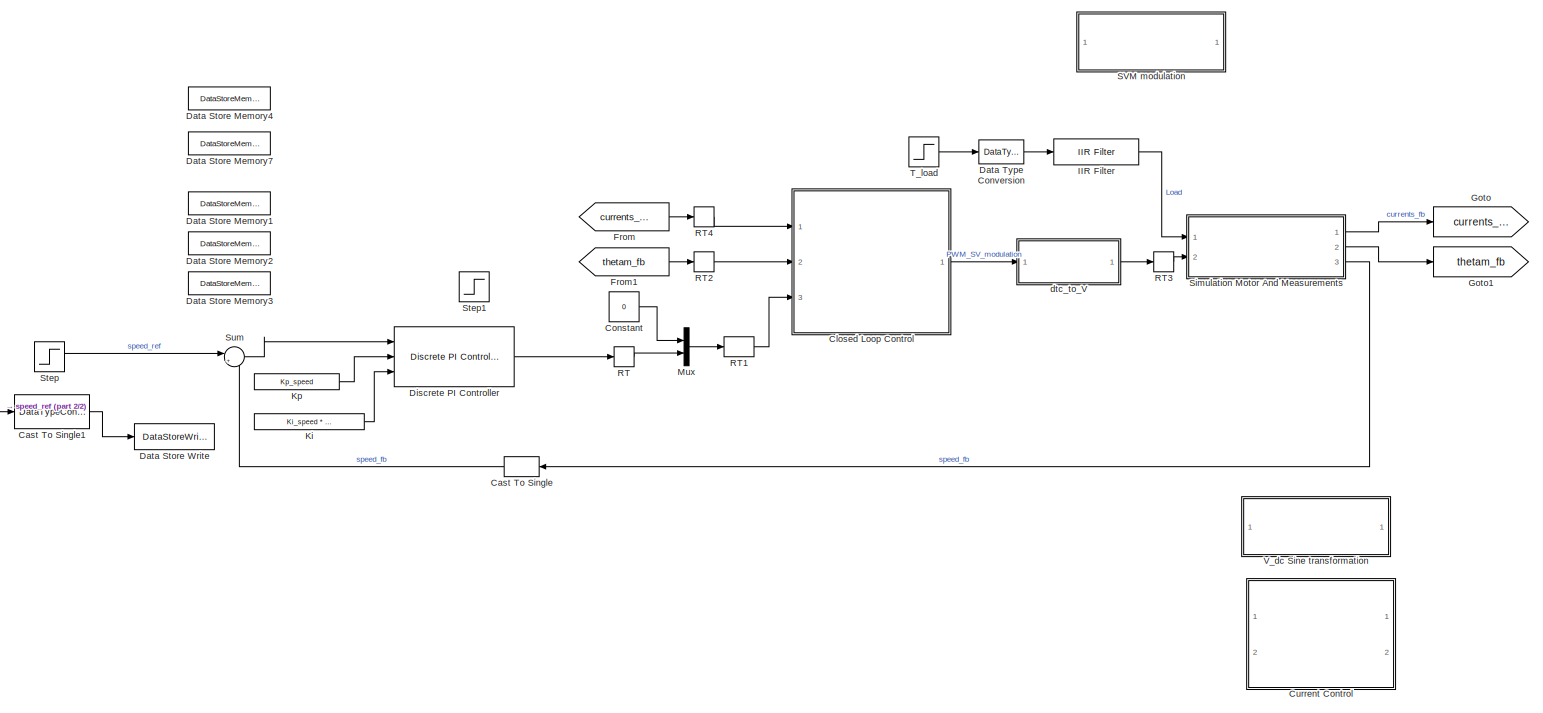
[diagram: root canvas - part 1/2, most of the canvas]
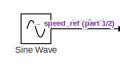
[diagram: root canvas - part 2/2, middle left region]
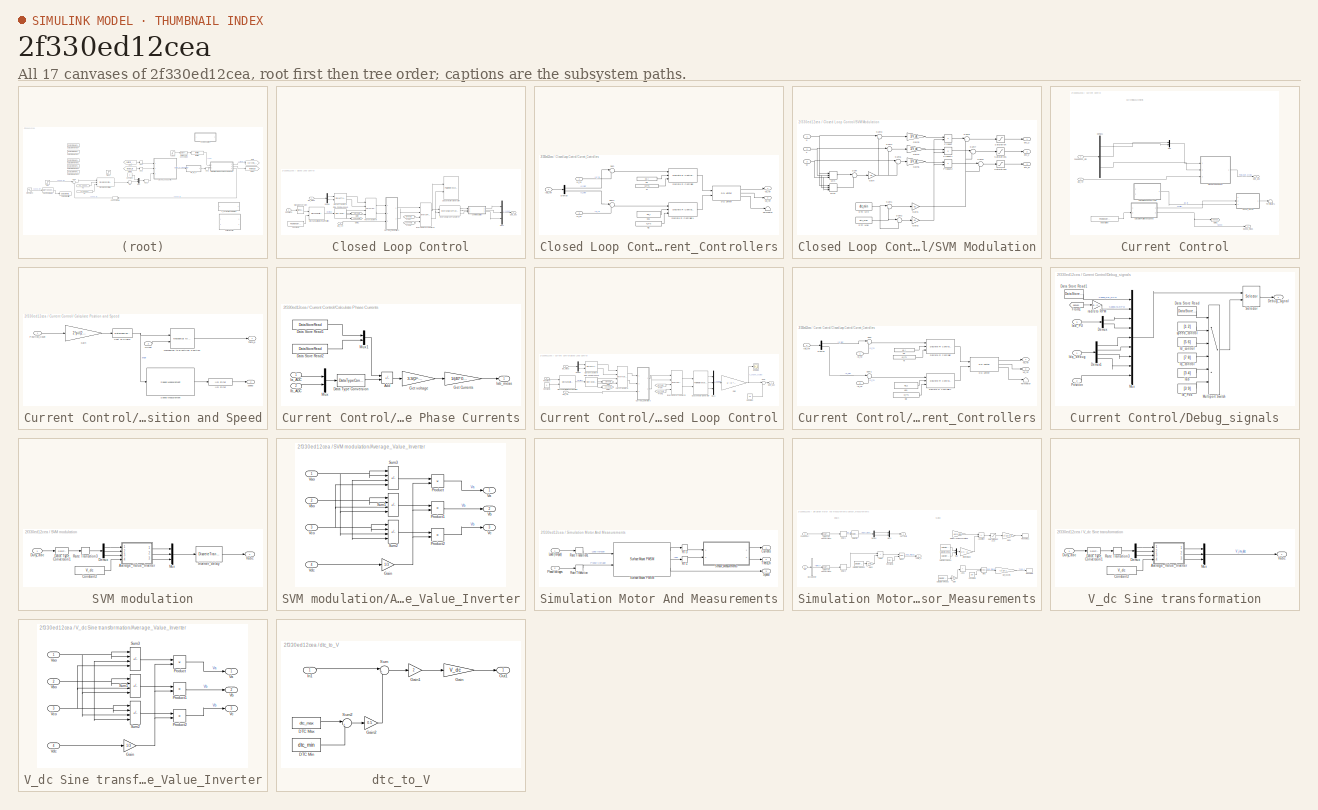
[diagram: thumbnail index - all 17 canvases of the model, root first then tree order]
MODEL slx_2f330ed12cea
KIND model
CONFIG AbsTol = auto
CONFIG EnableMultiTasking = off
CONFIG FixedStep = auto
CONFIG InitFcn = run bldc_control_params
CONFIG MaxStep = auto
CONFIG MinStep = auto
CONFIG RelTol = 1e-3
CONFIG SampleTimeConstraint = Unconstrained
CONFIG SolverName = VariableStepAuto
CONFIG StartTime = 0.0
CONFIG StopTime = 30
BLOCK [DataTypeConversion] Cast To Single
  NameLocation = top
  OutDataTypeStr = single
  RndMeth = Floor
  SaturateOnIntegerOverflow = off
BLOCK [DataTypeConversion] Cast To Single1
  OutDataTypeStr = single
  RndMeth = Floor
  SaturateOnIntegerOverflow = off
BLOCK [SubSystem] Closed Loop Control
  Ports = [3, 1]
  RequestExecContextInheritance = off
BLOCK [Reference] Closed Loop Control/Clarke Transform  REF=mcbcontrolslib/Clarke Transform
  Ports = [2, 2]
  SourceBlock = mcbcontrolslib/Clarke Transform
  SourceProductBaseCode = MT
  SourceType = Clarke Transform
BLOCK [Constant] Closed Loop Control/Constant1
  Value = PositionOffset
BLOCK [SubSystem] Closed Loop Control/Current_Controllers
  Ports = [3, 2]
  RequestExecContextInheritance = off
BLOCK [Reference] Closed Loop Control/Current_Controllers/DQ Limiter  REF=mcbcontrolslib/DQ Limiter
  Ports = [2, 3]
  SourceBlock = mcbcontrolslib/DQ Limiter
  SourceProductBaseCode = MT
  SourceType = DQ Limiter
BLOCK [Demux] Closed Loop Control/Current_Controllers/Demux
  Outputs = 2
  Ports = [1, 2]
BLOCK [Reference] Closed Loop Control/Current_Controllers/Discrete PI Controller  REF=mcbcontrolslib/Discrete PI Controller
  Ports = [3, 1]
  SourceBlock = mcbcontrolslib/Discrete PI Controller
  SourceProductBaseCode = MT
  SourceType = Discrete PI Controller
BLOCK [Reference] Closed Loop Control/Current_Controllers/Discrete PI Controller1  REF=mcbcontrolslib/Discrete PI Controller
  Ports = [3, 1]
  SourceBlock = mcbcontrolslib/Discrete PI Controller
  SourceProductBaseCode = MT
  SourceType = Discrete PI Controller
BLOCK [Inport] Closed Loop Control/Current_Controllers/Id_fb
BLOCK [Inport] Closed Loop Control/Current_Controllers/Idq_ref
  Port = 3
BLOCK [Inport] Closed Loop Control/Current_Controllers/Iq_fb
  Port = 2
BLOCK [Constant] Closed Loop Control/Current_Controllers/Ki
  OutDataTypeStr = dataType
  SampleTime = -1
  Value = Ki_i * Ts
BLOCK [Constant] Closed Loop Control/Current_Controllers/Ki2
  OutDataTypeStr = dataType
  SampleTime = -1
  Value = Ki_i * Ts
BLOCK [Constant] Closed Loop Control/Current_Controllers/Kp
  NameLocation = top
  OutDataTypeStr = dataType
  SampleTime = -1
  Value = Kp_i
BLOCK [Constant] Closed Loop Control/Current_Controllers/Kp1
  NameLocation = top
  OutDataTypeStr = dataType
  SampleTime = -1
  Value = Kp_i
BLOCK [Sum] Closed Loop Control/Current_Controllers/Sum
  AccumDataTypeStr = Inherit: Same as first input
  Inputs = |+-
  OutDataTypeStr = Inherit: Same as first input
  Ports = [2, 1]
BLOCK [Sum] Closed Loop Control/Current_Controllers/Sum1
  AccumDataTypeStr = Inherit: Same as first input
  Inputs = |+-
  OutDataTypeStr = Inherit: Same as first input
  Ports = [2, 1]
BLOCK [Terminator] Closed Loop Control/Current_Controllers/Terminator
BLOCK [Outport] Closed Loop Control/Current_Controllers/Vd_ref
  VectorParamsAs1DForOutWhenUnconnected = off
BLOCK [Outport] Closed Loop Control/Current_Controllers/Vq_ref
  Port = 2
  VectorParamsAs1DForOutWhenUnconnected = off
BLOCK [Demux] Closed Loop Control/Demux
  Outputs = 2
  Ports = [1, 2]
BLOCK [Outport] Closed Loop Control/Duty_abc
  VectorParamsAs1DForOutWhenUnconnected = off
BLOCK [From] Closed Loop Control/From
  GotoTag = sinTheta
BLOCK [From] Closed Loop Control/From1
  GotoTag = cosTheta
BLOCK [Goto] Closed Loop Control/Goto
  GotoTag = sinTheta
BLOCK [Goto] Closed Loop Control/Goto1
  GotoTag = cosTheta
BLOCK [Inport] Closed Loop Control/Iab_meas
BLOCK [Inport] Closed Loop Control/Idq_ref
  Port = 3
BLOCK [Reference] Closed Loop Control/Inverse Clarke Transform  REF=mcbcontrolslib/Inverse Clarke Transform
  Ports = [2, 3]
  SourceBlock = mcbcontrolslib/Inverse Clarke Transform
  SourceProductBaseCode = MT
  SourceType = Inverse Clarke Transform
BLOCK [Reference] Closed Loop Control/Inverse Park Transform  REF=mcbcontrolslib/Inverse Park Transform
  Ports = [4, 2]
  SourceBlock = mcbcontrolslib/Inverse Park Transform
  SourceProductBaseCode = MT
  SourceType = Inverse Park Transform
BLOCK [Reference] Closed Loop Control/Mechanical to Electrical Position  REF=mcbpositiondecoderlib/Mechanical to Electrical Position
  Ports = [2, 1]
  SourceBlock = mcbpositiondecoderlib/Mechanical to Electrical Position
  SourceProductBaseCode = MT
  SourceType = Mechanical to Electrical Position
BLOCK [Mux] Closed Loop Control/Mux1
  DisplayOption = bar
  Inputs = 3
  Ports = [3, 1]
BLOCK [Reference] Closed Loop Control/Park Transform  REF=mcbcontrolslib/Park Transform
  Ports = [4, 2]
  SourceBlock = mcbcontrolslib/Park Transform
  SourceProductBaseCode = MT
  SourceType = Park Transform
BLOCK [Inport] Closed Loop Control/Pos Mech
  Port = 2
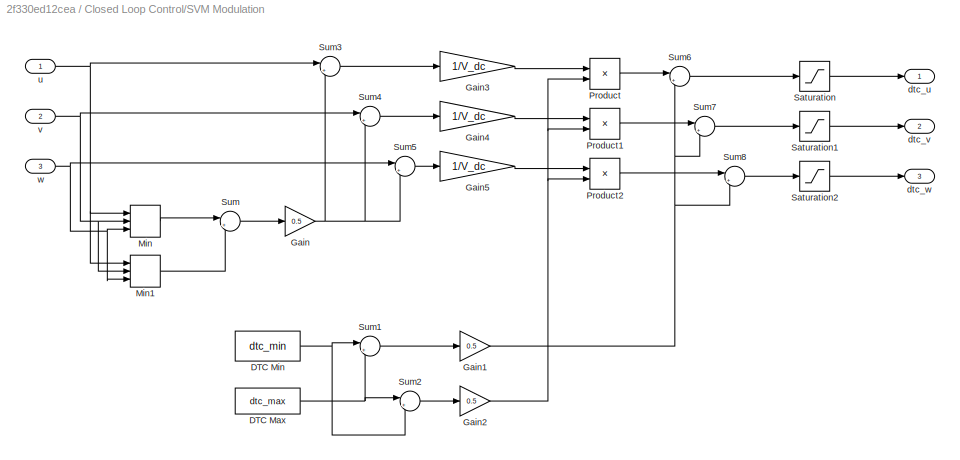
BLOCK [SubSystem] Closed Loop Control/SVM Modulation
  Ports = [3, 3]
  RequestExecContextInheritance = off
BLOCK [Constant] Closed Loop Control/SVM Modulation/DTC Max
  Value = dtc_max
BLOCK [Constant] Closed Loop Control/SVM Modulation/DTC Min
  Value = dtc_min
BLOCK [Gain] Closed Loop Control/SVM Modulation/Gain
  Gain = 0.5
BLOCK [Gain] Closed Loop Control/SVM Modulation/Gain1
  Gain = 0.5
BLOCK [Gain] Closed Loop Control/SVM Modulation/Gain2
  Gain = 0.5
BLOCK [Gain] Closed Loop Control/SVM Modulation/Gain3
  Gain = 1/V_dc
BLOCK [Gain] Closed Loop Control/SVM Modulation/Gain4
  Gain = 1/V_dc
BLOCK [Gain] Closed Loop Control/SVM Modulation/Gain5
  Gain = 1/V_dc
BLOCK [MinMax] Closed Loop Control/SVM Modulation/Min
  Inputs = 3
  Ports = [3, 1]
BLOCK [MinMax] Closed Loop Control/SVM Modulation/Min1
  Function = max
  Inputs = 3
  Ports = [3, 1]
BLOCK [Product] Closed Loop Control/SVM Modulation/Product
  Ports = [2, 1]
BLOCK [Product] Closed Loop Control/SVM Modulation/Product1
  Ports = [2, 1]
BLOCK [Product] Closed Loop Control/SVM Modulation/Product2
  Ports = [2, 1]
BLOCK [Saturate] Closed Loop Control/SVM Modulation/Saturation
  LowerLimit = 0
  UpperLimit = dtc_max
BLOCK [Saturate] Closed Loop Control/SVM Modulation/Saturation1
  LowerLimit = 0
  UpperLimit = dtc_max
BLOCK [Saturate] Closed Loop Control/SVM Modulation/Saturation2
  LowerLimit = 0
  UpperLimit = dtc_max
BLOCK [Sum] Closed Loop Control/SVM Modulation/Sum
  Inputs = |++
  Ports = [2, 1]
BLOCK [Sum] Closed Loop Control/SVM Modulation/Sum1
  Inputs = |++
  Ports = [2, 1]
BLOCK [Sum] Closed Loop Control/SVM Modulation/Sum2
  Inputs = |+-
  Ports = [2, 1]
BLOCK [Sum] Closed Loop Control/SVM Modulation/Sum3
  Inputs = |+-
  Ports = [2, 1]
BLOCK [Sum] Closed Loop Control/SVM Modulation/Sum4
  Inputs = |+-
  Ports = [2, 1]
BLOCK [Sum] Closed Loop Control/SVM Modulation/Sum5
  Inputs = |+-
  Ports = [2, 1]
BLOCK [Sum] Closed Loop Control/SVM Modulation/Sum6
  Inputs = |++
  Ports = [2, 1]
BLOCK [Sum] Closed Loop Control/SVM Modulation/Sum7
  Inputs = |++
  Ports = [2, 1]
BLOCK [Sum] Closed Loop Control/SVM Modulation/Sum8
  Inputs = |++
  Ports = [2, 1]
BLOCK [Outport] Closed Loop Control/SVM Modulation/dtc_u
BLOCK [Outport] Closed Loop Control/SVM Modulation/dtc_v
  Port = 2
BLOCK [Outport] Closed Loop Control/SVM Modulation/dtc_w
  Port = 3
BLOCK [Inport] Closed Loop Control/SVM Modulation/u
BLOCK [Inport] Closed Loop Control/SVM Modulation/v
  Port = 2
BLOCK [Inport] Closed Loop Control/SVM Modulation/w
  Port = 3
BLOCK [SignalConversion] Closed Loop Control/Signal Conversion
  OverrideOpt = off
BLOCK [Reference] Closed Loop Control/Sine-Cosine Lookup  REF=mcbcontrolslib/Sine-Cosine Lookup
  Ports = [1, 2]
  SourceBlock = mcbcontrolslib/Sine-Cosine Lookup
  SourceProductBaseCode = MT
  SourceType = Sine-Cosine Lookup
BLOCK [Reference] Closed Loop Control/Space Vector Generator  REF=mcbcontrolslib/PWM Reference Generator
  Commented = on
  Ports = [2, 3]
  SourceBlock = mcbcontrolslib/PWM Reference Generator
  SourceProductBaseCode = MT
  SourceType = PWM Modulation
BLOCK [Constant] Constant
  OutDataTypeStr = single
  Value = 0
BLOCK [SubSystem] Current Control
  Commented = on
  Ports = [2, 2]
  RTWMemSecFuncExecute = code_ramfuncs
  RTWSystemCode = Nonreusable function
  RequestExecContextInheritance = off
BLOCK [SubSystem] Current Control/ Calculate Position and Speed
  Commented = on
  Ports = [2, 2]
  RequestExecContextInheritance = off
BLOCK [DataTypeConversion] Current Control/ Calculate Position and Speed/Cast To Single
  OutDataTypeStr = single
  RndMeth = Floor
  SaturateOnIntegerOverflow = off
BLOCK [Gain] Current Control/ Calculate Position and Speed/Gain
  Gain = 2*pi/(2^enc_res)
BLOCK [Reference] Current Control/ Calculate Position and Speed/IIR Filter  REF=mcbcontrolslib/IIR Filter
  Ports = [1, 1]
  SourceBlock = mcbcontrolslib/IIR Filter
  SourceProductBaseCode = MT
  SourceType = IIR Filter
BLOCK [Reference] Current Control/ Calculate Position and Speed/Mechanical to Electrical Position  REF=mcbpositiondecoderlib/Mechanical to Electrical Position
  Ports = [2, 1]
  SourceBlock = mcbpositiondecoderlib/Mechanical to Electrical Position
  SourceProductBaseCode = MT
  SourceType = Mechanical to Electrical Position
BLOCK [Inport] Current Control/ Calculate Position and Speed/Offset
  Port = 2
BLOCK [Inport] Current Control/ Calculate Position and Speed/Position_Count
BLOCK [Reference] Current Control/ Calculate Position and Speed/Speed Measurement  REF=mcbpositiondecoderlib/Speed Measurement
  Ports = [1, 1]
  SourceBlock = mcbpositiondecoderlib/Speed Measurement
  SourceProductBaseCode = MT
  SourceType = Speed Measurement
BLOCK [Outport] Current Control/ Calculate Position and Speed/Theta_e
  VectorParamsAs1DForOutWhenUnconnected = off
BLOCK [Outport] Current Control/ Calculate Position and Speed/speed
  Port = 2
  VectorParamsAs1DForOutWhenUnconnected = off
BLOCK [SubSystem] Current Control/Calculate Phase Currents
  Commented = on
  Ports = [2, 1]
  RequestExecContextInheritance = off
BLOCK [Sum] Current Control/Calculate Phase Currents/Add
  IconShape = rectangular
  Inputs = +-
  Ports = [2, 1]
BLOCK [DataStoreRead] Current Control/Calculate Phase Currents/Data Store Read1
  DataStoreName = IaOffset
  IndexOptions = Index vector (dialog)
  Indices = 1
  OutputSizes = 1
  Ports = [0, 1]
BLOCK [DataStoreRead] Current Control/Calculate Phase Currents/Data Store Read2
  DataStoreName = IbOffset
  IndexOptions = Index vector (dialog)
  Indices = 1
  OutputSizes = 1
  Ports = [0, 1]
BLOCK [DataTypeConversion] Current Control/Calculate Phase Currents/Data Type Conversion
  ConvertRealWorld = Stored Integer (SI)
  OutDataTypeStr = int32
  RndMeth = Simplest
  SaturateOnIntegerOverflow = off
BLOCK [Gain] Current Control/Calculate Phase Currents/Get Currents
  Gain = 1/(40*0.001)
  OutDataTypeStr = dataType
  RndMeth = Simplest
BLOCK [Gain] Current Control/Calculate Phase Currents/Get voltage
  Gain = 3.3/(2^12)
BLOCK [Inport] Current Control/Calculate Phase Currents/Ia_ADC
BLOCK [Outport] Current Control/Calculate Phase Currents/Iab_meas
  VectorParamsAs1DForOutWhenUnconnected = off
BLOCK [Inport] Current Control/Calculate Phase Currents/Ib_ADC
  Port = 2
BLOCK [Mux] Current Control/Calculate Phase Currents/Mux
  DisplayOption = bar
  Inputs = 2
  Ports = [2, 1]
BLOCK [Mux] Current Control/Calculate Phase Currents/Mux1
  DisplayOption = bar
  Inputs = 2
  Ports = [2, 1]
BLOCK [SubSystem] Current Control/Closed Loop Control
  Ports = [3, 1]
  RequestExecContextInheritance = off
BLOCK [Reference] Current Control/Closed Loop Control/Clarke Transform  REF=mcbcontrolslib/Clarke Transform
  Ports = [2, 2]
  SourceBlock = mcbcontrolslib/Clarke Transform
  SourceProductBaseCode = MT
  SourceType = Clarke Transform
BLOCK [Constant] Current Control/Closed Loop Control/Constant
  OutDataTypeStr = dataType
  SampleTime = -1
  Value = 0.5
BLOCK [Constant] Current Control/Closed Loop Control/Constant1
  Value = 0
BLOCK [SubSystem] Current Control/Closed Loop Control/Current_Controllers
  Ports = [3, 2]
  RequestExecContextInheritance = off
BLOCK [Reference] Current Control/Closed Loop Control/Current_Controllers/DQ Limiter  REF=mcbcontrolslib/DQ Limiter
  Ports = [2, 3]
  SourceBlock = mcbcontrolslib/DQ Limiter
  SourceProductBaseCode = MT
  SourceType = DQ Limiter
BLOCK [Demux] Current Control/Closed Loop Control/Current_Controllers/Demux
  Outputs = 2
  Ports = [1, 2]
BLOCK [Reference] Current Control/Closed Loop Control/Current_Controllers/Discrete PI Controller  REF=mcbcontrolslib/Discrete PI Controller
  Ports = [3, 1]
  SourceBlock = mcbcontrolslib/Discrete PI Controller
  SourceProductBaseCode = MT
  SourceType = Discrete PI Controller
BLOCK [Reference] Current Control/Closed Loop Control/Current_Controllers/Discrete PI Controller1  REF=mcbcontrolslib/Discrete PI Controller
  Ports = [3, 1]
  SourceBlock = mcbcontrolslib/Discrete PI Controller
  SourceProductBaseCode = MT
  SourceType = Discrete PI Controller
BLOCK [Inport] Current Control/Closed Loop Control/Current_Controllers/Id_fb
BLOCK [Inport] Current Control/Closed Loop Control/Current_Controllers/Idq_ref
  Port = 3
BLOCK [Inport] Current Control/Closed Loop Control/Current_Controllers/Iq_fb
  Port = 2
BLOCK [Constant] Current Control/Closed Loop Control/Current_Controllers/Ki
  OutDataTypeStr = dataType
  SampleTime = -1
  Value = Ki_i * Ts
BLOCK [Constant] Current Control/Closed Loop Control/Current_Controllers/Ki2
  OutDataTypeStr = dataType
  SampleTime = -1
  Value = Ki_i * Ts
BLOCK [Constant] Current Control/Closed Loop Control/Current_Controllers/Kp
  NameLocation = top
  OutDataTypeStr = dataType
  SampleTime = -1
  Value = Kp_i
BLOCK [Constant] Current Control/Closed Loop Control/Current_Controllers/Kp1
  NameLocation = top
  OutDataTypeStr = dataType
  SampleTime = -1
  Value = Kp_i
BLOCK [Sum] Current Control/Closed Loop Control/Current_Controllers/Sum
  AccumDataTypeStr = Inherit: Same as first input
  Inputs = |+-
  OutDataTypeStr = Inherit: Same as first input
  Ports = [2, 1]
BLOCK [Sum] Current Control/Closed Loop Control/Current_Controllers/Sum1
  AccumDataTypeStr = Inherit: Same as first input
  Inputs = |+-
  OutDataTypeStr = Inherit: Same as first input
  Ports = [2, 1]
BLOCK [Terminator] Current Control/Closed Loop Control/Current_Controllers/Terminator
BLOCK [Outport] Current Control/Closed Loop Control/Current_Controllers/Vd_ref
  VectorParamsAs1DForOutWhenUnconnected = off
BLOCK [Outport] Current Control/Closed Loop Control/Current_Controllers/Vq_ref
  Port = 2
  VectorParamsAs1DForOutWhenUnconnected = off
BLOCK [Demux] Current Control/Closed Loop Control/Demux
  Outputs = 2
  Ports = [1, 2]
BLOCK [Outport] Current Control/Closed Loop Control/Duty_abc
  VectorParamsAs1DForOutWhenUnconnected = off
BLOCK [From] Current Control/Closed Loop Control/From
  GotoTag = sinTheta
BLOCK [From] Current Control/Closed Loop Control/From1
  GotoTag = cosTheta
BLOCK [Gain] Current Control/Closed Loop Control/Gain
  Gain = 1/ (2 * V_dc / sqrt(3))
  OutDataTypeStr = Inherit: Same as input
  RndMeth = Simplest
BLOCK [Goto] Current Control/Closed Loop Control/Goto
  GotoTag = sinTheta
BLOCK [Goto] Current Control/Closed Loop Control/Goto1
  GotoTag = cosTheta
BLOCK [Inport] Current Control/Closed Loop Control/Iab_meas
BLOCK [Inport] Current Control/Closed Loop Control/Idq_ref
  Port = 3
BLOCK [Reference] Current Control/Closed Loop Control/Inverse Park Transform  REF=mcbcontrolslib/Inverse Park Transform
  Ports = [4, 2]
  SourceBlock = mcbcontrolslib/Inverse Park Transform
  SourceProductBaseCode = MT
  SourceType = Inverse Park Transform
BLOCK [Reference] Current Control/Closed Loop Control/Mechanical to Electrical Position  REF=mcbpositiondecoderlib/Mechanical to Electrical Position
  Ports = [2, 1]
  SourceBlock = mcbpositiondecoderlib/Mechanical to Electrical Position
  SourceProductBaseCode = MT
  SourceType = Mechanical to Electrical Position
BLOCK [Mux] Current Control/Closed Loop Control/Mux1
  DisplayOption = bar
  Inputs = 3
  Ports = [3, 1]
BLOCK [Reference] Current Control/Closed Loop Control/Park Transform  REF=mcbcontrolslib/Park Transform
  Ports = [4, 2]
  SourceBlock = mcbcontrolslib/Park Transform
  SourceProductBaseCode = MT
  SourceType = Park Transform
BLOCK [Inport] Current Control/Closed Loop Control/Pos Mech
  Port = 2
BLOCK [Scope] Current Control/Closed Loop Control/Scope1
  Floating = off
  NumInputPorts = 1
  Ports = [1]
  ScopeSpecificationString = Simulink.scopes.TimeScopeBlockCfg('CurrentConfiguration', extmgr.ConfigurationSet(extmgr.Configuration('Core','General UI',true),extmgr.Configuration('Core','Source UI',true),extmgr.Configuration('Sources','WiredSimulink',true,'DataLoggingVariableName','ScopeData2'),extmgr.Configuration('Visuals','Time Domain',true,'SerializedDisplays',{struct('MinYLimReal','-0.62458','MaxYLimReal','0.62458','YLab...<+1634ch>
BLOCK [Reference] Current Control/Closed Loop Control/Sine-Cosine Lookup  REF=mcbcontrolslib/Sine-Cosine Lookup
  Ports = [1, 2]
  SourceBlock = mcbcontrolslib/Sine-Cosine Lookup
  SourceProductBaseCode = MT
  SourceType = Sine-Cosine Lookup
BLOCK [Reference] Current Control/Closed Loop Control/Space Vector Generator  REF=mcbcontrolslib/PWM Reference Generator
  Ports = [2, 3]
  SourceBlock = mcbcontrolslib/PWM Reference Generator
  SourceProductBaseCode = MT
  SourceType = PWM Modulation
BLOCK [Sum] Current Control/Closed Loop Control/Sum
  AccumDataTypeStr = Inherit: Same as first input
  Inputs = |++
  Ports = [2, 1]
BLOCK [SubSystem] Current Control/Debug_signals
  Commented = on
  Ports = [3, 1]
  RequestExecContextInheritance = off
BLOCK [DataStoreRead] Current Control/Debug_signals/Data Store Read
  DataStoreName = Debug_signals
  IndexOptions = Index vector (dialog)
  Indices = 1
  OutputSizes = 1
  Ports = [0, 1]
BLOCK [DataStoreRead] Current Control/Debug_signals/Data Store Read1
  DataStoreName = Speed_ref
  IndexOptions = Index vector (dialog)
  Indices = 1
  OutputSizes = 1
  Ports = [0, 1]
BLOCK [Outport] Current Control/Debug_signals/Debug_signal
BLOCK [Demux] Current Control/Debug_signals/Demux
  Outputs = 2
  Ports = [1, 2]
BLOCK [Demux] Current Control/Debug_signals/Demux1
  Ports = [1, 4]
BLOCK [From] Current Control/Debug_signals/From1
  GotoTag = debug1
  TagVisibility = global
BLOCK [Constant] Current Control/Debug_signals/Ia_Pos
  OutDataTypeStr = uint16
  SampleTime = -1
  Value = [3 9]
BLOCK [Constant] Current Control/Debug_signals/Iab
  OutDataTypeStr = uint16
  SampleTime = -1
  Value = [3 4]
BLOCK [Inport] Current Control/Debug_signals/Iab_PU
  Port = 3
BLOCK [Constant] Current Control/Debug_signals/Id_control
  OutDataTypeStr = uint16
  SampleTime = -1
  Value = [5 6]
BLOCK [Inport] Current Control/Debug_signals/Idq_debug
BLOCK [Constant] Current Control/Debug_signals/Iq_control
  OutDataTypeStr = uint16
  SampleTime = -1
  Value = [7 8]
BLOCK [MultiPortSwitch] Current Control/Debug_signals/Multiport Switch
  DiagnosticForDefault = Warning
  InputSameDT = off
  Inputs = 5
  OutDataTypeStr = uint16
  Ports = [6, 1]
  RndMeth = Simplest
  SaturateOnIntegerOverflow = off
BLOCK [Mux] Current Control/Debug_signals/Mux
  DisplayOption = bar
  Inputs = 9
  Ports = [9, 1]
BLOCK [Inport] Current Control/Debug_signals/Position
  Port = 2
BLOCK [Selector] Current Control/Debug_signals/Selector
  IndexOptions = Index vector (port)
  Indices = [1 3]
  InputPortWidth = 9
  OutputSizes = 1
  Ports = [2, 1]
BLOCK [Gain] Current Control/Debug_signals/rad//s to RPM
  Gain = 60/ (2 * pi)
  OutDataTypeStr = Inherit: Same as input
  RndMeth = Simplest
BLOCK [Constant] Current Control/Debug_signals/speed_control
  OutDataTypeStr = uint16
  SampleTime = -1
  Value = [1 2]
BLOCK [Demux] Current Control/Demux1
  Outputs = 3
  Ports = [1, 3]
BLOCK [Outport] Current Control/Duty_abc
  Port = 2
  VectorParamsAs1DForOutWhenUnconnected = off
BLOCK [Inport] Current Control/Feedbacks_sim
  Port = 2
BLOCK [Goto] Current Control/Goto1
  Commented = on
  GotoTag = debug1
  TagVisibility = global
BLOCK [Inport] Current Control/Idq_ref
BLOCK [Constant] Current Control/IndexOffset
  Commented = on
  OutDataTypeStr = dataType
  SampleTime = -1
  Value = PositionOffset * 2 * pi
BLOCK [Mux] Current Control/Mux
  DisplayOption = bar
  Inputs = 2
  Ports = [2, 1]
BLOCK [Outport] Current Control/Speed_meas
  InitialOutput = 0
  VectorParamsAs1DForOutWhenUnconnected = off
BLOCK [Terminator] Current Control/Terminator1
BLOCK [DataStoreMemory] Data Store Memory1
  DataStoreName = IaOffset
  InitialValue = 2064
  OutDataTypeStr = uint16
  ShowAdditionalParam = off
BLOCK [DataStoreMemory] Data Store Memory2
  DataStoreName = IbOffset
  InitialValue = 2064
  OutDataTypeStr = uint16
  ShowAdditionalParam = off
BLOCK [DataStoreMemory] Data Store Memory3
  DataStoreName = RotorOffset
  InitialValue = 2064
  OutDataTypeStr = uint16
  ShowAdditionalParam = off
BLOCK [DataStoreMemory] Data Store Memory4
  DataStoreName = Speed_ref
  OutDataTypeStr = dataType
  ShowAdditionalParam = off
BLOCK [DataStoreMemory] Data Store Memory7
  DataStoreName = Debug_signals
  InitialValue = 5
  OutDataTypeStr = uint16
  ShowAdditionalParam = off
BLOCK [DataStoreWrite] Data Store Write
  DataStoreName = Speed_ref
  IndexOptions = Index vector (dialog)
  Indices = 1
  OutputSizes = 1
  Ports = [1]
BLOCK [DataTypeConversion] Data Type Conversion
  OutDataTypeStr = single
  RndMeth = Floor
  SaturateOnIntegerOverflow = off
BLOCK [Reference] Discrete PI Controller  REF=mcbcontrolslib/Discrete PI Controller
  Ports = [3, 1]
  SourceBlock = mcbcontrolslib/Discrete PI Controller
  SourceProductBaseCode = MT
  SourceType = Discrete PI Controller
BLOCK [From] From
  GotoTag = currents_fb
BLOCK [From] From1
  GotoTag = thetam_fb
BLOCK [Goto] Goto
  GotoTag = currents_fb
BLOCK [Goto] Goto1
  GotoTag = thetam_fb
BLOCK [Reference] IIR Filter  REF=mcbcontrolslib/IIR Filter
  Ports = [1, 1]
  SourceBlock = mcbcontrolslib/IIR Filter
  SourceProductBaseCode = MT
  SourceType = IIR Filter
BLOCK [Constant] Ki
  OutDataTypeStr = dataType
  SampleTime = -1
  Value = Ki_speed * Ts_speed
BLOCK [Constant] Kp
  NameLocation = top
  OutDataTypeStr = dataType
  SampleTime = -1
  Value = Kp_speed
BLOCK [Mux] Mux
  DisplayOption = bar
  Inputs = 2
  Ports = [2, 1]
BLOCK [RateTransition] RT
  Deterministic = off
  OutPortSampleTime = Ts_speed
BLOCK [RateTransition] RT1
  Deterministic = off
BLOCK [RateTransition] RT2
  Deterministic = off
BLOCK [RateTransition] RT3
  Deterministic = off
BLOCK [RateTransition] RT4
  Deterministic = off
BLOCK [SubSystem] SVM modulation
  Commented = on
  Ports = [1, 1]
  RequestExecContextInheritance = off
BLOCK [SubSystem] SVM modulation/Average_Value_Inverter
  Ports = [4, 3]
  RequestExecContextInheritance = off
BLOCK [Gain] SVM modulation/Average_Value_Inverter/Gain
  Gain = 1/3
  OutDataTypeStr = Inherit: Same as input
  RndMeth = Simplest
BLOCK [Product] SVM modulation/Average_Value_Inverter/Product
  OutDataTypeStr = Inherit: Same as first input
  Ports = [2, 1]
  RndMeth = Simplest
BLOCK [Product] SVM modulation/Average_Value_Inverter/Product1
  OutDataTypeStr = Inherit: Same as first input
  Ports = [2, 1]
  RndMeth = Simplest
BLOCK [Product] SVM modulation/Average_Value_Inverter/Product2
  OutDataTypeStr = Inherit: Same as first input
  Ports = [2, 1]
  RndMeth = Simplest
BLOCK [Sum] SVM modulation/Average_Value_Inverter/Sum1
  AccumDataTypeStr = Inherit: Same as first input
  IconShape = rectangular
  Inputs = |++--
  OutDataTypeStr = Inherit: Same as first input
  Ports = [4, 1]
  RndMeth = Simplest
BLOCK [Sum] SVM modulation/Average_Value_Inverter/Sum2
  AccumDataTypeStr = Inherit: Same as first input
  IconShape = rectangular
  Inputs = |++--
  OutDataTypeStr = Inherit: Same as first input
  Ports = [4, 1]
  RndMeth = Simplest
BLOCK [Sum] SVM modulation/Average_Value_Inverter/Sum3
  AccumDataTypeStr = Inherit: Same as first input
  IconShape = rectangular
  Inputs = |++--
  OutDataTypeStr = Inherit: Same as first input
  Ports = [4, 1]
  RndMeth = Simplest
BLOCK [Outport] SVM modulation/Average_Value_Inverter/Va
  VectorParamsAs1DForOutWhenUnconnected = off
BLOCK [Inport] SVM modulation/Average_Value_Inverter/Vao
BLOCK [Outport] SVM modulation/Average_Value_Inverter/Vb
  Port = 2
  VectorParamsAs1DForOutWhenUnconnected = off
BLOCK [Inport] SVM modulation/Average_Value_Inverter/Vbo
  Port = 2
BLOCK [Outport] SVM modulation/Average_Value_Inverter/Vc
  Port = 3
  VectorParamsAs1DForOutWhenUnconnected = off
BLOCK [Inport] SVM modulation/Average_Value_Inverter/Vco
  Port = 3
BLOCK [Inport] SVM modulation/Average_Value_Inverter/Vdc
  Port = 4
BLOCK [Constant] SVM modulation/Constant2
  OutDataTypeStr = single
  SampleTime = -1
  Value = V_dc
BLOCK [DataTypeConversion] SVM modulation/Data Type Conversion1
  OutDataTypeStr = single
  RndMeth = Simplest
  SaturateOnIntegerOverflow = off
BLOCK [Demux] SVM modulation/Demux
  Outputs = 3
  Ports = [1, 3]
BLOCK [Inport] SVM modulation/Duty_abc
BLOCK [DiscreteTransferFcn] SVM modulation/Inverter_delay
  Denominator = [1 -exp(-Ts_inverter/(T_pwm/2))]
  InputPortMap = u0
  Numerator = [1-exp(-Ts_inverter/(T_pwm/2))]
  Ports = [1, 1]
  RndMeth = Simplest
BLOCK [Mux] SVM modulation/Mux
  DisplayOption = bar
  Inputs = 3
  Ports = [3, 1]
BLOCK [RateTransition] SVM modulation/Rate Transition3
  Integrity = off
  OutPortSampleTime = Ts_inverter
BLOCK [Outport] SVM modulation/Vabc
  VectorParamsAs1DForOutWhenUnconnected = off
BLOCK [SubSystem] Simulation Motor And Measurements
  Ports = [2, 3]
  RequestExecContextInheritance = off
BLOCK [Outport] Simulation Motor And Measurements/Currents
  VectorParamsAs1DForOutWhenUnconnected = off
BLOCK [Inport] Simulation Motor And Measurements/Load (torque)
BLOCK [Inport] Simulation Motor And Measurements/Phase voltages
  Port = 2
BLOCK [RateTransition] Simulation Motor And Measurements/RT1
  Deterministic = off
  OutPortSampleTime = Ts_simulink
BLOCK [RateTransition] Simulation Motor And Measurements/RT3
  Deterministic = off
  OutPortSampleTime = Ts_simulink
BLOCK [RateTransition] Simulation Motor And Measurements/Rate Transition
  Integrity = off
  OutPortSampleTime = Ts_motor
BLOCK [RateTransition] Simulation Motor And Measurements/Rate Transition1
  Integrity = off
  OutPortSampleTime = Ts_motor
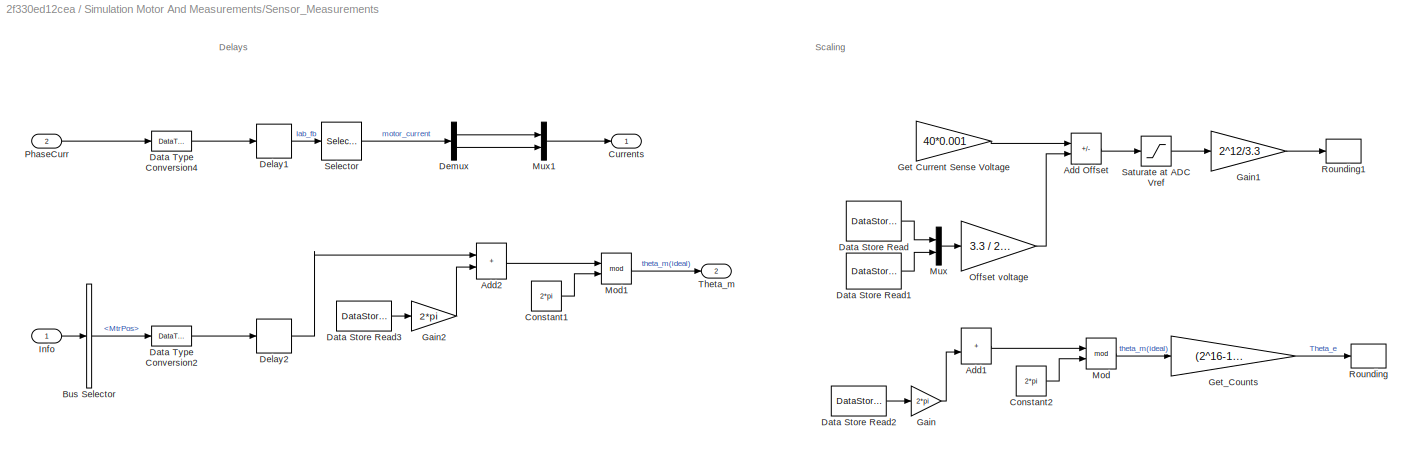
BLOCK [SubSystem] Simulation Motor And Measurements/Sensor_Measurements
  Ports = [2, 2]
  RequestExecContextInheritance = off
BLOCK [Sum] Simulation Motor And Measurements/Sensor_Measurements/Add Offset
  Commented = on
  IconShape = rectangular
  Inputs = -+
  Ports = [2, 1]
  RndMeth = Simplest
BLOCK [Sum] Simulation Motor And Measurements/Sensor_Measurements/Add1
  Commented = on
  IconShape = rectangular
  Ports = [2, 1]
  RndMeth = Simplest
BLOCK [Sum] Simulation Motor And Measurements/Sensor_Measurements/Add2
  IconShape = rectangular
  Ports = [2, 1]
  RndMeth = Simplest
BLOCK [BusSelector] Simulation Motor And Measurements/Sensor_Measurements/Bus Selector
  OutputSignals = MtrPos
  Ports = [1, 1]
BLOCK [Constant] Simulation Motor And Measurements/Sensor_Measurements/Constant1
  OutDataTypeStr = single
  SampleTime = -1
  Value = 2*pi
BLOCK [Constant] Simulation Motor And Measurements/Sensor_Measurements/Constant2
  Commented = on
  OutDataTypeStr = single
  SampleTime = -1
  Value = 2*pi
BLOCK [Outport] Simulation Motor And Measurements/Sensor_Measurements/Currents
  VectorParamsAs1DForOutWhenUnconnected = off
BLOCK [DataStoreRead] Simulation Motor And Measurements/Sensor_Measurements/Data Store Read
  Commented = on
  DataStoreName = IaOffset
  IndexOptions = Index vector (dialog)
  Indices = 1
  OutputSizes = 1
  Ports = [0, 1]
BLOCK [DataStoreRead] Simulation Motor And Measurements/Sensor_Measurements/Data Store Read1
  Commented = on
  DataStoreName = IbOffset
  IndexOptions = Index vector (dialog)
  Indices = 1
  OutputSizes = 1
  Ports = [0, 1]
BLOCK [DataStoreRead] Simulation Motor And Measurements/Sensor_Measurements/Data Store Read2
  Commented = on
  DataStoreName = RotorOffset
  IndexOptions = Index vector (dialog)
  Indices = 1
  OutputSizes = 1
  Ports = [0, 1]
BLOCK [DataStoreRead] Simulation Motor And Measurements/Sensor_Measurements/Data Store Read3
  DataStoreName = RotorOffset
  IndexOptions = Index vector (dialog)
  Indices = 1
  OutputSizes = 1
  Ports = [0, 1]
BLOCK [DataTypeConversion] Simulation Motor And Measurements/Sensor_Measurements/Data Type Conversion2
  OutDataTypeStr = single
  RndMeth = Simplest
  SaturateOnIntegerOverflow = off
BLOCK [DataTypeConversion] Simulation Motor And Measurements/Sensor_Measurements/Data Type Conversion4
  OutDataTypeStr = single
  RndMeth = Simplest
  SaturateOnIntegerOverflow = off
BLOCK [Delay] Simulation Motor And Measurements/Sensor_Measurements/Delay1
  DelayLength = delay_Currents
  InputPortMap = u0
  Ports = [1, 1]
BLOCK [Delay] Simulation Motor And Measurements/Sensor_Measurements/Delay2
  DelayLength = delay_Currents
  InputPortMap = u0
  Ports = [1, 1]
BLOCK [Demux] Simulation Motor And Measurements/Sensor_Measurements/Demux
  Outputs = 2
  Ports = [1, 2]
BLOCK [Gain] Simulation Motor And Measurements/Sensor_Measurements/Gain
  Commented = on
  Gain = 2*pi
BLOCK [Gain] Simulation Motor And Measurements/Sensor_Measurements/Gain1
  Commented = on
  Gain = 2^12/3.3
BLOCK [Gain] Simulation Motor And Measurements/Sensor_Measurements/Gain2
  Gain = 2*pi
BLOCK [Gain] Simulation Motor And Measurements/Sensor_Measurements/Get Current Sense Voltage
  Commented = on
  Gain = 40*0.001
  OutDataTypeStr = Inherit: Same as input
  RndMeth = Simplest
BLOCK [Gain] Simulation Motor And Measurements/Sensor_Measurements/Get_Counts
  Commented = on
  Gain = (2^16-1)/(2*pi)
  OutDataTypeStr = uint16
  RndMeth = Simplest
BLOCK [Inport] Simulation Motor And Measurements/Sensor_Measurements/Info
BLOCK [Math] Simulation Motor And Measurements/Sensor_Measurements/Mod
  Commented = on
  Operator = mod
  Ports = [2, 1]
BLOCK [Math] Simulation Motor And Measurements/Sensor_Measurements/Mod1
  Operator = mod
  Ports = [2, 1]
BLOCK [Mux] Simulation Motor And Measurements/Sensor_Measurements/Mux
  Commented = on
  DisplayOption = bar
  Inputs = 2
  Ports = [2, 1]
BLOCK [Mux] Simulation Motor And Measurements/Sensor_Measurements/Mux1
  DisplayOption = bar
  Inputs = 2
  Ports = [2, 1]
BLOCK [Gain] Simulation Motor And Measurements/Sensor_Measurements/Offset voltage
  Commented = on
  Gain = 3.3 / 2^12
  RndMeth = Simplest
BLOCK [Inport] Simulation Motor And Measurements/Sensor_Measurements/PhaseCurr
  Port = 2
BLOCK [DataTypeConversion] Simulation Motor And Measurements/Sensor_Measurements/Rounding
  Commented = on
  OutDataTypeStr = uint16
  RndMeth = Simplest
  SaturateOnIntegerOverflow = off
BLOCK [DataTypeConversion] Simulation Motor And Measurements/Sensor_Measurements/Rounding1
  Commented = on
  OutDataTypeStr = uint16
  RndMeth = Simplest
  SaturateOnIntegerOverflow = off
BLOCK [Saturate] Simulation Motor And Measurements/Sensor_Measurements/Saturate at ADC Vref
  Commented = on
  LowerLimit = 0
  UpperLimit = 3.3
BLOCK [Selector] Simulation Motor And Measurements/Sensor_Measurements/Selector
  IndexOptions = Index vector (dialog)
  Indices = [1 2]
  InputPortWidth = 3
  OutputSizes = 1
  Ports = [1, 1]
BLOCK [Outport] Simulation Motor And Measurements/Sensor_Measurements/Theta_m
  Port = 2
  VectorParamsAs1DForOutWhenUnconnected = off
BLOCK [Outport] Simulation Motor And Measurements/Speed
  Port = 3
  VectorParamsAs1DForOutWhenUnconnected = off
BLOCK [Reference] Simulation Motor And Measurements/Surface Mount PMSM  REF=autolibpmsmexterior/Surface Mount PMSM
  Ports = [2, 3]
  SourceBlock = autolibpmsmexterior/Surface Mount PMSM
  SourceProductBaseCode = PW,DR,MT,UV,VE
  SourceType = Surface Mount PMSM
BLOCK [Outport] Simulation Motor And Measurements/Theta_m
  Port = 2
  VectorParamsAs1DForOutWhenUnconnected = off
BLOCK [Sin] Sine Wave
  Amplitude = 2
  Frequency = 0.5
  Ports = [0, 1]
  SampleTime = Ts_simulink
BLOCK [Step] Step
  After = 5
  OutDataTypeStr = single
  SampleTime = Ts_simulink
BLOCK [Step] Step1
  After = 100
  Commented = on
  OutDataTypeStr = single
  SampleTime = Ts_simulink
BLOCK [Sum] Sum
  Inputs = |+-
  Ports = [2, 1]
BLOCK [Step] T_load
  After = 0*T_rated
  SampleTime = Ts_simulink
  Time = 1.5
BLOCK [SubSystem] V_dc Sine transformation
  Commented = on
  Ports = [1, 1]
  RequestExecContextInheritance = off
BLOCK [SubSystem] V_dc Sine transformation/Average_Value_Inverter
  Ports = [4, 3]
  RequestExecContextInheritance = off
BLOCK [Gain] V_dc Sine transformation/Average_Value_Inverter/Gain
  Gain = 1/3
  OutDataTypeStr = Inherit: Same as input
  RndMeth = Simplest
BLOCK [Product] V_dc Sine transformation/Average_Value_Inverter/Product
  OutDataTypeStr = Inherit: Same as first input
  Ports = [2, 1]
  RndMeth = Simplest
BLOCK [Product] V_dc Sine transformation/Average_Value_Inverter/Product1
  OutDataTypeStr = Inherit: Same as first input
  Ports = [2, 1]
  RndMeth = Simplest
BLOCK [Product] V_dc Sine transformation/Average_Value_Inverter/Product2
  OutDataTypeStr = Inherit: Same as first input
  Ports = [2, 1]
  RndMeth = Simplest
BLOCK [Sum] V_dc Sine transformation/Average_Value_Inverter/Sum1
  AccumDataTypeStr = Inherit: Same as first input
  IconShape = rectangular
  Inputs = |++--
  OutDataTypeStr = Inherit: Same as first input
  Ports = [4, 1]
  RndMeth = Simplest
BLOCK [Sum] V_dc Sine transformation/Average_Value_Inverter/Sum2
  AccumDataTypeStr = Inherit: Same as first input
  IconShape = rectangular
  Inputs = |++--
  OutDataTypeStr = Inherit: Same as first input
  Ports = [4, 1]
  RndMeth = Simplest
BLOCK [Sum] V_dc Sine transformation/Average_Value_Inverter/Sum3
  AccumDataTypeStr = Inherit: Same as first input
  IconShape = rectangular
  Inputs = |++--
  OutDataTypeStr = Inherit: Same as first input
  Ports = [4, 1]
  RndMeth = Simplest
BLOCK [Outport] V_dc Sine transformation/Average_Value_Inverter/Va
  VectorParamsAs1DForOutWhenUnconnected = off
BLOCK [Inport] V_dc Sine transformation/Average_Value_Inverter/Vao
BLOCK [Outport] V_dc Sine transformation/Average_Value_Inverter/Vb
  Port = 2
  VectorParamsAs1DForOutWhenUnconnected = off
BLOCK [Inport] V_dc Sine transformation/Average_Value_Inverter/Vbo
  Port = 2
BLOCK [Outport] V_dc Sine transformation/Average_Value_Inverter/Vc
  Port = 3
  VectorParamsAs1DForOutWhenUnconnected = off
BLOCK [Inport] V_dc Sine transformation/Average_Value_Inverter/Vco
  Port = 3
BLOCK [Inport] V_dc Sine transformation/Average_Value_Inverter/Vdc
  Port = 4
BLOCK [Constant] V_dc Sine transformation/Constant2
  OutDataTypeStr = single
  SampleTime = -1
  Value = V_dc
BLOCK [DataTypeConversion] V_dc Sine transformation/Data Type Conversion1
  OutDataTypeStr = single
  RndMeth = Simplest
  SaturateOnIntegerOverflow = off
BLOCK [Demux] V_dc Sine transformation/Demux
  Outputs = 3
  Ports = [1, 3]
BLOCK [Inport] V_dc Sine transformation/Duty_abc
BLOCK [Mux] V_dc Sine transformation/Mux
  DisplayOption = bar
  Inputs = 3
  Ports = [3, 1]
BLOCK [RateTransition] V_dc Sine transformation/Rate Transition3
  Integrity = off
  OutPortSampleTime = Ts_inverter
BLOCK [Outport] V_dc Sine transformation/Vabc
  VectorParamsAs1DForOutWhenUnconnected = off
BLOCK [SubSystem] dtc_to_V
  Ports = [1, 1]
  RequestExecContextInheritance = off
BLOCK [Constant] dtc_to_V/DTC Max
  Value = dtc_max
BLOCK [Constant] dtc_to_V/DTC Min
  Value = dtc_min
BLOCK [Gain] dtc_to_V/Gain
  Gain = V_dc
BLOCK [Gain] dtc_to_V/Gain1
  Gain = 2
BLOCK [Gain] dtc_to_V/Gain2
  Gain = 0.5
BLOCK [Inport] dtc_to_V/In1
BLOCK [Outport] dtc_to_V/Out1
BLOCK [Sum] dtc_to_V/Sum
  Inputs = |+-
  Ports = [2, 1]
BLOCK [Sum] dtc_to_V/Sum2
  Inputs = |+-
  Ports = [2, 1]
ANNOTATION Current Control: Current Measurements
ANNOTATION Simulation Motor And Measurements/Sensor_Measurements: Delays
ANNOTATION Simulation Motor And Measurements/Sensor_Measurements: Scaling
LINE Cast To Single1:1 -> Data Store Write:1
LINE Cast To Single:1 -> Sum:2
LINE Closed Loop Control/Clarke Transform:1 -> Closed Loop Control/Park Transform:1
LINE Closed Loop Control/Clarke Transform:2 -> Closed Loop Control/Park Transform:2
LINE Closed Loop Control/Constant1:1 -> Closed Loop Control/Mechanical to Electrical Position:2
LINE Closed Loop Control/Current_Controllers/DQ Limiter:1 -> Closed Loop Control/Current_Controllers/Vd_ref:1
LINE Closed Loop Control/Current_Controllers/DQ Limiter:2 -> Closed Loop Control/Current_Controllers/Vq_ref:1
LINE Closed Loop Control/Current_Controllers/DQ Limiter:3 -> Closed Loop Control/Current_Controllers/Terminator:1
LINE Closed Loop Control/Current_Controllers/Demux:1 -> Closed Loop Control/Current_Controllers/Sum:1
LINE Closed Loop Control/Current_Controllers/Demux:2 -> Closed Loop Control/Current_Controllers/Sum1:1
LINE Closed Loop Control/Current_Controllers/Discrete PI Controller1:1 -> Closed Loop Control/Current_Controllers/DQ Limiter:2
LINE Closed Loop Control/Current_Controllers/Discrete PI Controller:1 -> Closed Loop Control/Current_Controllers/DQ Limiter:1
LINE Closed Loop Control/Current_Controllers/Id_fb:1 -> Closed Loop Control/Current_Controllers/Sum:2
LINE Closed Loop Control/Current_Controllers/Idq_ref:1 -> Closed Loop Control/Current_Controllers/Demux:1
LINE Closed Loop Control/Current_Controllers/Iq_fb:1 -> Closed Loop Control/Current_Controllers/Sum1:2
LINE Closed Loop Control/Current_Controllers/Ki2:1 -> Closed Loop Control/Current_Controllers/Discrete PI Controller1:3
LINE Closed Loop Control/Current_Controllers/Ki:1 -> Closed Loop Control/Current_Controllers/Discrete PI Controller:3
LINE Closed Loop Control/Current_Controllers/Kp1:1 -> Closed Loop Control/Current_Controllers/Discrete PI Controller1:2
LINE Closed Loop Control/Current_Controllers/Kp:1 -> Closed Loop Control/Current_Controllers/Discrete PI Controller:2
LINE Closed Loop Control/Current_Controllers/Sum1:1 -> Closed Loop Control/Current_Controllers/Discrete PI Controller1:1
LINE Closed Loop Control/Current_Controllers/Sum:1 -> Closed Loop Control/Current_Controllers/Discrete PI Controller:1
LINE Closed Loop Control/Current_Controllers:1 -> Closed Loop Control/Inverse Park Transform:1
LINE Closed Loop Control/Current_Controllers:2 -> Closed Loop Control/Inverse Park Transform:2
LINE Closed Loop Control/Demux:1 -> Closed Loop Control/Clarke Transform:1
LINE Closed Loop Control/Demux:2 -> Closed Loop Control/Clarke Transform:2
LINE Closed Loop Control/From1:1 -> Closed Loop Control/Inverse Park Transform:4
LINE Closed Loop Control/From:1 -> Closed Loop Control/Inverse Park Transform:3
LINE Closed Loop Control/Iab_meas:1 -> Closed Loop Control/Demux:1
LINE Closed Loop Control/Idq_ref:1 -> Closed Loop Control/Current_Controllers:3
LINE Closed Loop Control/Inverse Clarke Transform:1 -> Closed Loop Control/SVM Modulation:1
LINE Closed Loop Control/Inverse Clarke Transform:2 -> Closed Loop Control/SVM Modulation:2
LINE Closed Loop Control/Inverse Clarke Transform:3 -> Closed Loop Control/SVM Modulation:3
NET Closed Loop Control/Inverse Park Transform:1 -> Closed Loop Control/Inverse Clarke Transform:1, Closed Loop Control/Space Vector Generator:1
NET Closed Loop Control/Inverse Park Transform:2 -> Closed Loop Control/Inverse Clarke Transform:2, Closed Loop Control/Space Vector Generator:2
LINE Closed Loop Control/Mechanical to Electrical Position:1 -> Closed Loop Control/Sine-Cosine Lookup:1
LINE Closed Loop Control/Mux1:1 -> Closed Loop Control/Duty_abc:1
LINE Closed Loop Control/Park Transform:1 -> Closed Loop Control/Current_Controllers:1
LINE Closed Loop Control/Park Transform:2 -> Closed Loop Control/Current_Controllers:2
LINE Closed Loop Control/Pos Mech:1 -> Closed Loop Control/Signal Conversion:1
NET Closed Loop Control/SVM Modulation/DTC Max:1 -> Closed Loop Control/SVM Modulation/Sum1:2, Closed Loop Control/SVM Modulation/Sum2:1
NET Closed Loop Control/SVM Modulation/DTC Min:1 -> Closed Loop Control/SVM Modulation/Sum1:1, Closed Loop Control/SVM Modulation/Sum2:2
NET Closed Loop Control/SVM Modulation/Gain1:1 -> Closed Loop Control/SVM Modulation/Sum6:2, Closed Loop Control/SVM Modulation/Sum7:2, Closed Loop Control/SVM Modulation/Sum8:2
NET Closed Loop Control/SVM Modulation/Gain2:1 -> Closed Loop Control/SVM Modulation/Product1:2, Closed Loop Control/SVM Modulation/Product2:2, Closed Loop Control/SVM Modulation/Product:2
LINE Closed Loop Control/SVM Modulation/Gain3:1 -> Closed Loop Control/SVM Modulation/Product:1
LINE Closed Loop Control/SVM Modulation/Gain4:1 -> Closed Loop Control/SVM Modulation/Product1:1
LINE Closed Loop Control/SVM Modulation/Gain5:1 -> Closed Loop Control/SVM Modulation/Product2:1
NET Closed Loop Control/SVM Modulation/Gain:1 -> Closed Loop Control/SVM Modulation/Sum3:2, Closed Loop Control/SVM Modulation/Sum4:2, Closed Loop Control/SVM Modulation/Sum5:2
LINE Closed Loop Control/SVM Modulation/Min1:1 -> Closed Loop Control/SVM Modulation/Sum:2
LINE Closed Loop Control/SVM Modulation/Min:1 -> Closed Loop Control/SVM Modulation/Sum:1
LINE Closed Loop Control/SVM Modulation/Product1:1 -> Closed Loop Control/SVM Modulation/Sum7:1
LINE Closed Loop Control/SVM Modulation/Product2:1 -> Closed Loop Control/SVM Modulation/Sum8:1
LINE Closed Loop Control/SVM Modulation/Product:1 -> Closed Loop Control/SVM Modulation/Sum6:1
LINE Closed Loop Control/SVM Modulation/Saturation1:1 -> Closed Loop Control/SVM Modulation/dtc_v:1
LINE Closed Loop Control/SVM Modulation/Saturation2:1 -> Closed Loop Control/SVM Modulation/dtc_w:1
LINE Closed Loop Control/SVM Modulation/Saturation:1 -> Closed Loop Control/SVM Modulation/dtc_u:1
LINE Closed Loop Control/SVM Modulation/Sum1:1 -> Closed Loop Control/SVM Modulation/Gain1:1
LINE Closed Loop Control/SVM Modulation/Sum2:1 -> Closed Loop Control/SVM Modulation/Gain2:1
LINE Closed Loop Control/SVM Modulation/Sum3:1 -> Closed Loop Control/SVM Modulation/Gain3:1
LINE Closed Loop Control/SVM Modulation/Sum4:1 -> Closed Loop Control/SVM Modulation/Gain4:1
LINE Closed Loop Control/SVM Modulation/Sum5:1 -> Closed Loop Control/SVM Modulation/Gain5:1
LINE Closed Loop Control/SVM Modulation/Sum6:1 -> Closed Loop Control/SVM Modulation/Saturation:1
LINE Closed Loop Control/SVM Modulation/Sum7:1 -> Closed Loop Control/SVM Modulation/Saturation1:1
LINE Closed Loop Control/SVM Modulation/Sum8:1 -> Closed Loop Control/SVM Modulation/Saturation2:1
LINE Closed Loop Control/SVM Modulation/Sum:1 -> Closed Loop Control/SVM Modulation/Gain:1
NET Closed Loop Control/SVM Modulation/u:1 -> Closed Loop Control/SVM Modulation/Min1:1, Closed Loop Control/SVM Modulation/Min:1, Closed Loop Control/SVM Modulation/Sum3:1
NET Closed Loop Control/SVM Modulation/v:1 -> Closed Loop Control/SVM Modulation/Min1:2, Closed Loop Control/SVM Modulation/Min:2, Closed Loop Control/SVM Modulation/Sum4:1
NET Closed Loop Control/SVM Modulation/w:1 -> Closed Loop Control/SVM Modulation/Min1:3, Closed Loop Control/SVM Modulation/Min:3, Closed Loop Control/SVM Modulation/Sum5:1
LINE Closed Loop Control/SVM Modulation:1 -> Closed Loop Control/Mux1:1
LINE Closed Loop Control/SVM Modulation:2 -> Closed Loop Control/Mux1:2
LINE Closed Loop Control/SVM Modulation:3 -> Closed Loop Control/Mux1:3
LINE Closed Loop Control/Signal Conversion:1 -> Closed Loop Control/Mechanical to Electrical Position:1
NET Closed Loop Control/Sine-Cosine Lookup:1 -> Closed Loop Control/Goto:1, Closed Loop Control/Park Transform:3
NET Closed Loop Control/Sine-Cosine Lookup:2 -> Closed Loop Control/Goto1:1, Closed Loop Control/Park Transform:4
LINE Closed Loop Control:1 -> dtc_to_V:1
LINE Constant:1 -> Mux:1
NET Current Control/ Calculate Position and Speed/Cast To Single:1 -> Current Control/ Calculate Position and Speed/Mechanical to Electrical Position:1, Current Control/ Calculate Position and Speed/Speed Measurement:1
LINE Current Control/ Calculate Position and Speed/Gain:1 -> Current Control/ Calculate Position and Speed/Cast To Single:1
LINE Current Control/ Calculate Position and Speed/IIR Filter:1 -> Current Control/ Calculate Position and Speed/speed:1
LINE Current Control/ Calculate Position and Speed/Mechanical to Electrical Position:1 -> Current Control/ Calculate Position and Speed/Theta_e:1
LINE Current Control/ Calculate Position and Speed/Offset:1 -> Current Control/ Calculate Position and Speed/Mechanical to Electrical Position:2
LINE Current Control/ Calculate Position and Speed/Position_Count:1 -> Current Control/ Calculate Position and Speed/Gain:1
LINE Current Control/ Calculate Position and Speed/Speed Measurement:1 -> Current Control/ Calculate Position and Speed/IIR Filter:1
LINE Current Control/ Calculate Position and Speed:1 -> Current Control/Debug_signals:2
NET Current Control/ Calculate Position and Speed:2 -> Current Control/Goto1:1, Current Control/Speed_meas:1
LINE Current Control/Calculate Phase Currents/Add:1 -> Current Control/Calculate Phase Currents/Get voltage:1
LINE Current Control/Calculate Phase Currents/Data Store Read1:1 -> Current Control/Calculate Phase Currents/Mux1:1
LINE Current Control/Calculate Phase Currents/Data Store Read2:1 -> Current Control/Calculate Phase Currents/Mux1:2
LINE Current Control/Calculate Phase Currents/Data Type Conversion:1 -> Current Control/Calculate Phase Currents/Add:2
LINE Current Control/Calculate Phase Currents/Get Currents:1 -> Current Control/Calculate Phase Currents/Iab_meas:1
LINE Current Control/Calculate Phase Currents/Get voltage:1 -> Current Control/Calculate Phase Currents/Get Currents:1
LINE Current Control/Calculate Phase Currents/Ia_ADC:1 -> Current Control/Calculate Phase Currents/Mux:1
LINE Current Control/Calculate Phase Currents/Ib_ADC:1 -> Current Control/Calculate Phase Currents/Mux:2
LINE Current Control/Calculate Phase Currents/Mux1:1 -> Current Control/Calculate Phase Currents/Add:1
LINE Current Control/Calculate Phase Currents/Mux:1 -> Current Control/Calculate Phase Currents/Data Type Conversion:1
LINE Current Control/Calculate Phase Currents:1 -> Current Control/Debug_signals:3
LINE Current Control/Closed Loop Control/Clarke Transform:1 -> Current Control/Closed Loop Control/Park Transform:1
LINE Current Control/Closed Loop Control/Clarke Transform:2 -> Current Control/Closed Loop Control/Park Transform:2
LINE Current Control/Closed Loop Control/Constant1:1 -> Current Control/Closed Loop Control/Mechanical to Electrical Position:2
LINE Current Control/Closed Loop Control/Constant:1 -> Current Control/Closed Loop Control/Sum:2
LINE Current Control/Closed Loop Control/Current_Controllers/DQ Limiter:1 -> Current Control/Closed Loop Control/Current_Controllers/Vd_ref:1
LINE Current Control/Closed Loop Control/Current_Controllers/DQ Limiter:2 -> Current Control/Closed Loop Control/Current_Controllers/Vq_ref:1
LINE Current Control/Closed Loop Control/Current_Controllers/DQ Limiter:3 -> Current Control/Closed Loop Control/Current_Controllers/Terminator:1
LINE Current Control/Closed Loop Control/Current_Controllers/Demux:1 -> Current Control/Closed Loop Control/Current_Controllers/Sum:1
LINE Current Control/Closed Loop Control/Current_Controllers/Demux:2 -> Current Control/Closed Loop Control/Current_Controllers/Sum1:1
LINE Current Control/Closed Loop Control/Current_Controllers/Discrete PI Controller1:1 -> Current Control/Closed Loop Control/Current_Controllers/DQ Limiter:2
LINE Current Control/Closed Loop Control/Current_Controllers/Discrete PI Controller:1 -> Current Control/Closed Loop Control/Current_Controllers/DQ Limiter:1
LINE Current Control/Closed Loop Control/Current_Controllers/Id_fb:1 -> Current Control/Closed Loop Control/Current_Controllers/Sum:2
LINE Current Control/Closed Loop Control/Current_Controllers/Idq_ref:1 -> Current Control/Closed Loop Control/Current_Controllers/Demux:1
LINE Current Control/Closed Loop Control/Current_Controllers/Iq_fb:1 -> Current Control/Closed Loop Control/Current_Controllers/Sum1:2
LINE Current Control/Closed Loop Control/Current_Controllers/Ki2:1 -> Current Control/Closed Loop Control/Current_Controllers/Discrete PI Controller1:3
LINE Current Control/Closed Loop Control/Current_Controllers/Ki:1 -> Current Control/Closed Loop Control/Current_Controllers/Discrete PI Controller:3
LINE Current Control/Closed Loop Control/Current_Controllers/Kp1:1 -> Current Control/Closed Loop Control/Current_Controllers/Discrete PI Controller1:2
LINE Current Control/Closed Loop Control/Current_Controllers/Kp:1 -> Current Control/Closed Loop Control/Current_Controllers/Discrete PI Controller:2
LINE Current Control/Closed Loop Control/Current_Controllers/Sum1:1 -> Current Control/Closed Loop Control/Current_Controllers/Discrete PI Controller1:1
LINE Current Control/Closed Loop Control/Current_Controllers/Sum:1 -> Current Control/Closed Loop Control/Current_Controllers/Discrete PI Controller:1
LINE Current Control/Closed Loop Control/Current_Controllers:1 -> Current Control/Closed Loop Control/Inverse Park Transform:1
LINE Current Control/Closed Loop Control/Current_Controllers:2 -> Current Control/Closed Loop Control/Inverse Park Transform:2
LINE Current Control/Closed Loop Control/Demux:1 -> Current Control/Closed Loop Control/Clarke Transform:1
LINE Current Control/Closed Loop Control/Demux:2 -> Current Control/Closed Loop Control/Clarke Transform:2
LINE Current Control/Closed Loop Control/From1:1 -> Current Control/Closed Loop Control/Inverse Park Transform:4
LINE Current Control/Closed Loop Control/From:1 -> Current Control/Closed Loop Control/Inverse Park Transform:3
NET Current Control/Closed Loop Control/Gain:1 -> Current Control/Closed Loop Control/Scope1:1, Current Control/Closed Loop Control/Sum:1
LINE Current Control/Closed Loop Control/Iab_meas:1 -> Current Control/Closed Loop Control/Demux:1
LINE Current Control/Closed Loop Control/Idq_ref:1 -> Current Control/Closed Loop Control/Current_Controllers:3
LINE Current Control/Closed Loop Control/Inverse Park Transform:1 -> Current Control/Closed Loop Control/Space Vector Generator:1
LINE Current Control/Closed Loop Control/Inverse Park Transform:2 -> Current Control/Closed Loop Control/Space Vector Generator:2
LINE Current Control/Closed Loop Control/Mechanical to Electrical Position:1 -> Current Control/Closed Loop Control/Sine-Cosine Lookup:1
LINE Current Control/Closed Loop Control/Mux1:1 -> Current Control/Closed Loop Control/Gain:1
LINE Current Control/Closed Loop Control/Park Transform:1 -> Current Control/Closed Loop Control/Current_Controllers:1
LINE Current Control/Closed Loop Control/Park Transform:2 -> Current Control/Closed Loop Control/Current_Controllers:2
LINE Current Control/Closed Loop Control/Pos Mech:1 -> Current Control/Closed Loop Control/Mechanical to Electrical Position:1
NET Current Control/Closed Loop Control/Sine-Cosine Lookup:1 -> Current Control/Closed Loop Control/Goto:1, Current Control/Closed Loop Control/Park Transform:3
NET Current Control/Closed Loop Control/Sine-Cosine Lookup:2 -> Current Control/Closed Loop Control/Goto1:1, Current Control/Closed Loop Control/Park Transform:4
LINE Current Control/Closed Loop Control/Space Vector Generator:1 -> Current Control/Closed Loop Control/Mux1:1
LINE Current Control/Closed Loop Control/Space Vector Generator:2 -> Current Control/Closed Loop Control/Mux1:2
LINE Current Control/Closed Loop Control/Space Vector Generator:3 -> Current Control/Closed Loop Control/Mux1:3
LINE Current Control/Closed Loop Control/Sum:1 -> Current Control/Closed Loop Control/Duty_abc:1
LINE Current Control/Closed Loop Control:1 -> Current Control/Duty_abc:1
LINE Current Control/Debug_signals/Data Store Read1:1 -> Current Control/Debug_signals/Mux:1
LINE Current Control/Debug_signals/Data Store Read:1 -> Current Control/Debug_signals/Multiport Switch:1
LINE Current Control/Debug_signals/Demux1:1 -> Current Control/Debug_signals/Mux:5
LINE Current Control/Debug_signals/Demux1:2 -> Current Control/Debug_signals/Mux:6
LINE Current Control/Debug_signals/Demux1:3 -> Current Control/Debug_signals/Mux:7
LINE Current Control/Debug_signals/Demux1:4 -> Current Control/Debug_signals/Mux:8
LINE Current Control/Debug_signals/Demux:1 -> Current Control/Debug_signals/Mux:3
LINE Current Control/Debug_signals/Demux:2 -> Current Control/Debug_signals/Mux:4
LINE Current Control/Debug_signals/From1:1 -> Current Control/Debug_signals/rad//s to RPM:1
LINE Current Control/Debug_signals/Ia_Pos:1 -> Current Control/Debug_signals/Multiport Switch:6
LINE Current Control/Debug_signals/Iab:1 -> Current Control/Debug_signals/Multiport Switch:5
LINE Current Control/Debug_signals/Iab_PU:1 -> Current Control/Debug_signals/Demux:1
LINE Current Control/Debug_signals/Id_control:1 -> Current Control/Debug_signals/Multiport Switch:3
LINE Current Control/Debug_signals/Idq_debug:1 -> Current Control/Debug_signals/Demux1:1
LINE Current Control/Debug_signals/Iq_control:1 -> Current Control/Debug_signals/Multiport Switch:4
LINE Current Control/Debug_signals/Multiport Switch:1 -> Current Control/Debug_signals/Selector:2
LINE Current Control/Debug_signals/Mux:1 -> Current Control/Debug_signals/Selector:1
LINE Current Control/Debug_signals/Position:1 -> Current Control/Debug_signals/Mux:9
LINE Current Control/Debug_signals/Selector:1 -> Current Control/Debug_signals/Debug_signal:1
LINE Current Control/Debug_signals/rad//s to RPM:1 -> Current Control/Debug_signals/Mux:2
LINE Current Control/Debug_signals/speed_control:1 -> Current Control/Debug_signals/Multiport Switch:2
LINE Current Control/Debug_signals:1 -> Current Control/Terminator1:1
LINE Current Control/Demux1:1 -> Current Control/Mux:1
LINE Current Control/Demux1:2 -> Current Control/Mux:2
LINE Current Control/Demux1:3 -> Current Control/Closed Loop Control:2
LINE Current Control/Feedbacks_sim:1 -> Current Control/Demux1:1
LINE Current Control/Idq_ref:1 -> Current Control/Closed Loop Control:3
LINE Current Control/IndexOffset:1 -> Current Control/ Calculate Position and Speed:2
LINE Current Control/Mux:1 -> Current Control/Closed Loop Control:1
LINE Data Type Conversion:1 -> IIR Filter:1
LINE Discrete PI Controller:1 -> RT:1
LINE From1:1 -> RT2:1
LINE From:1 -> RT4:1
LINE IIR Filter:1 -> Simulation Motor And Measurements:1
LINE Ki:1 -> Discrete PI Controller:3
LINE Kp:1 -> Discrete PI Controller:2
LINE Mux:1 -> RT1:1
LINE RT1:1 -> Closed Loop Control:3
LINE RT2:1 -> Closed Loop Control:2
LINE RT3:1 -> Simulation Motor And Measurements:2
LINE RT4:1 -> Closed Loop Control:1
LINE RT:1 -> Mux:2
NET SVM modulation/Average_Value_Inverter/Gain:1 -> SVM modulation/Average_Value_Inverter/Product1:2, SVM modulation/Average_Value_Inverter/Product2:2, SVM modulation/Average_Value_Inverter/Product:2
LINE SVM modulation/Average_Value_Inverter/Product1:1 -> SVM modulation/Average_Value_Inverter/Vb:1
LINE SVM modulation/Average_Value_Inverter/Product2:1 -> SVM modulation/Average_Value_Inverter/Vc:1
LINE SVM modulation/Average_Value_Inverter/Product:1 -> SVM modulation/Average_Value_Inverter/Va:1
LINE SVM modulation/Average_Value_Inverter/Sum1:1 -> SVM modulation/Average_Value_Inverter/Product1:1
LINE SVM modulation/Average_Value_Inverter/Sum2:1 -> SVM modulation/Average_Value_Inverter/Product2:1
LINE SVM modulation/Average_Value_Inverter/Sum3:1 -> SVM modulation/Average_Value_Inverter/Product:1
NET SVM modulation/Average_Value_Inverter/Vao:1 -> SVM modulation/Average_Value_Inverter/Sum1:4, SVM modulation/Average_Value_Inverter/Sum2:3, SVM modulation/Average_Value_Inverter/Sum3:1, SVM modulation/Average_Value_Inverter/Sum3:2
NET SVM modulation/Average_Value_Inverter/Vbo:1 -> SVM modulation/Average_Value_Inverter/Sum1:1, SVM modulation/Average_Value_Inverter/Sum1:2, SVM modulation/Average_Value_Inverter/Sum2:4, SVM modulation/Average_Value_Inverter/Sum3:3
NET SVM modulation/Average_Value_Inverter/Vco:1 -> SVM modulation/Average_Value_Inverter/Sum1:3, SVM modulation/Average_Value_Inverter/Sum2:1, SVM modulation/Average_Value_Inverter/Sum2:2, SVM modulation/Average_Value_Inverter/Sum3:4
LINE SVM modulation/Average_Value_Inverter/Vdc:1 -> SVM modulation/Average_Value_Inverter/Gain:1
LINE SVM modulation/Average_Value_Inverter:1 -> SVM modulation/Mux:1
LINE SVM modulation/Average_Value_Inverter:2 -> SVM modulation/Mux:2
LINE SVM modulation/Average_Value_Inverter:3 -> SVM modulation/Mux:3
LINE SVM modulation/Constant2:1 -> SVM modulation/Average_Value_Inverter:4
LINE SVM modulation/Data Type Conversion1:1 -> SVM modulation/Rate Transition3:1
LINE SVM modulation/Demux:1 -> SVM modulation/Average_Value_Inverter:1
LINE SVM modulation/Demux:2 -> SVM modulation/Average_Value_Inverter:2
LINE SVM modulation/Demux:3 -> SVM modulation/Average_Value_Inverter:3
LINE SVM modulation/Duty_abc:1 -> SVM modulation/Data Type Conversion1:1
LINE SVM modulation/Inverter_delay:1 -> SVM modulation/Vabc:1
LINE SVM modulation/Mux:1 -> SVM modulation/Inverter_delay:1
LINE SVM modulation/Rate Transition3:1 -> SVM modulation/Demux:1
LINE Simulation Motor And Measurements/Load (torque):1 -> Simulation Motor And Measurements/Rate Transition1:1
LINE Simulation Motor And Measurements/Phase voltages:1 -> Simulation Motor And Measurements/Rate Transition:1
LINE Simulation Motor And Measurements/RT1:1 -> Simulation Motor And Measurements/Sensor_Measurements:2
LINE Simulation Motor And Measurements/RT3:1 -> Simulation Motor And Measurements/Sensor_Measurements:1
LINE Simulation Motor And Measurements/Rate Transition1:1 -> Simulation Motor And Measurements/Surface Mount PMSM:1
LINE Simulation Motor And Measurements/Rate Transition:1 -> Simulation Motor And Measurements/Surface Mount PMSM:2
LINE Simulation Motor And Measurements/Sensor_Measurements/Add Offset:1 -> Simulation Motor And Measurements/Sensor_Measurements/Saturate at ADC Vref:1
LINE Simulation Motor And Measurements/Sensor_Measurements/Add1:1 -> Simulation Motor And Measurements/Sensor_Measurements/Mod:1
LINE Simulation Motor And Measurements/Sensor_Measurements/Add2:1 -> Simulation Motor And Measurements/Sensor_Measurements/Mod1:1
LINE Simulation Motor And Measurements/Sensor_Measurements/Bus Selector:1 -> Simulation Motor And Measurements/Sensor_Measurements/Data Type Conversion2:1
LINE Simulation Motor And Measurements/Sensor_Measurements/Constant1:1 -> Simulation Motor And Measurements/Sensor_Measurements/Mod1:2
LINE Simulation Motor And Measurements/Sensor_Measurements/Constant2:1 -> Simulation Motor And Measurements/Sensor_Measurements/Mod:2
LINE Simulation Motor And Measurements/Sensor_Measurements/Data Store Read1:1 -> Simulation Motor And Measurements/Sensor_Measurements/Mux:2
LINE Simulation Motor And Measurements/Sensor_Measurements/Data Store Read2:1 -> Simulation Motor And Measurements/Sensor_Measurements/Gain:1
LINE Simulation Motor And Measurements/Sensor_Measurements/Data Store Read3:1 -> Simulation Motor And Measurements/Sensor_Measurements/Gain2:1
LINE Simulation Motor And Measurements/Sensor_Measurements/Data Store Read:1 -> Simulation Motor And Measurements/Sensor_Measurements/Mux:1
LINE Simulation Motor And Measurements/Sensor_Measurements/Data Type Conversion2:1 -> Simulation Motor And Measurements/Sensor_Measurements/Delay2:1
LINE Simulation Motor And Measurements/Sensor_Measurements/Data Type Conversion4:1 -> Simulation Motor And Measurements/Sensor_Measurements/Delay1:1
LINE Simulation Motor And Measurements/Sensor_Measurements/Delay1:1 -> Simulation Motor And Measurements/Sensor_Measurements/Selector:1
LINE Simulation Motor And Measurements/Sensor_Measurements/Delay2:1 -> Simulation Motor And Measurements/Sensor_Measurements/Add2:1
LINE Simulation Motor And Measurements/Sensor_Measurements/Demux:1 -> Simulation Motor And Measurements/Sensor_Measurements/Mux1:1
LINE Simulation Motor And Measurements/Sensor_Measurements/Demux:2 -> Simulation Motor And Measurements/Sensor_Measurements/Mux1:2
LINE Simulation Motor And Measurements/Sensor_Measurements/Gain1:1 -> Simulation Motor And Measurements/Sensor_Measurements/Rounding1:1
LINE Simulation Motor And Measurements/Sensor_Measurements/Gain2:1 -> Simulation Motor And Measurements/Sensor_Measurements/Add2:2
LINE Simulation Motor And Measurements/Sensor_Measurements/Gain:1 -> Simulation Motor And Measurements/Sensor_Measurements/Add1:2
LINE Simulation Motor And Measurements/Sensor_Measurements/Get Current Sense Voltage:1 -> Simulation Motor And Measurements/Sensor_Measurements/Add Offset:1
LINE Simulation Motor And Measurements/Sensor_Measurements/Get_Counts:1 -> Simulation Motor And Measurements/Sensor_Measurements/Rounding:1
LINE Simulation Motor And Measurements/Sensor_Measurements/Info:1 -> Simulation Motor And Measurements/Sensor_Measurements/Bus Selector:1
LINE Simulation Motor And Measurements/Sensor_Measurements/Mod1:1 -> Simulation Motor And Measurements/Sensor_Measurements/Theta_m:1
LINE Simulation Motor And Measurements/Sensor_Measurements/Mod:1 -> Simulation Motor And Measurements/Sensor_Measurements/Get_Counts:1
LINE Simulation Motor And Measurements/Sensor_Measurements/Mux1:1 -> Simulation Motor And Measurements/Sensor_Measurements/Currents:1
LINE Simulation Motor And Measurements/Sensor_Measurements/Mux:1 -> Simulation Motor And Measurements/Sensor_Measurements/Offset voltage:1
LINE Simulation Motor And Measurements/Sensor_Measurements/Offset voltage:1 -> Simulation Motor And Measurements/Sensor_Measurements/Add Offset:2
LINE Simulation Motor And Measurements/Sensor_Measurements/PhaseCurr:1 -> Simulation Motor And Measurements/Sensor_Measurements/Data Type Conversion4:1
LINE Simulation Motor And Measurements/Sensor_Measurements/Saturate at ADC Vref:1 -> Simulation Motor And Measurements/Sensor_Measurements/Gain1:1
LINE Simulation Motor And Measurements/Sensor_Measurements/Selector:1 -> Simulation Motor And Measurements/Sensor_Measurements/Demux:1
LINE Simulation Motor And Measurements/Sensor_Measurements:1 -> Simulation Motor And Measurements/Currents:1
LINE Simulation Motor And Measurements/Sensor_Measurements:2 -> Simulation Motor And Measurements/Theta_m:1
LINE Simulation Motor And Measurements/Surface Mount PMSM:1 -> Simulation Motor And Measurements/RT3:1
LINE Simulation Motor And Measurements/Surface Mount PMSM:2 -> Simulation Motor And Measurements/RT1:1
LINE Simulation Motor And Measurements/Surface Mount PMSM:3 -> Simulation Motor And Measurements/Speed:1
LINE Simulation Motor And Measurements:1 -> Goto:1
LINE Simulation Motor And Measurements:2 -> Goto1:1
LINE Simulation Motor And Measurements:3 -> Cast To Single:1
LINE Sine Wave:1 -> Cast To Single1:1
LINE Step:1 -> Sum:1
LINE Sum:1 -> Discrete PI Controller:1
LINE T_load:1 -> Data Type Conversion:1
NET V_dc Sine transformation/Average_Value_Inverter/Gain:1 -> V_dc Sine transformation/Average_Value_Inverter/Product1:2, V_dc Sine transformation/Average_Value_Inverter/Product2:2, V_dc Sine transformation/Average_Value_Inverter/Product:2
LINE V_dc Sine transformation/Average_Value_Inverter/Product1:1 -> V_dc Sine transformation/Average_Value_Inverter/Vb:1
LINE V_dc Sine transformation/Average_Value_Inverter/Product2:1 -> V_dc Sine transformation/Average_Value_Inverter/Vc:1
LINE V_dc Sine transformation/Average_Value_Inverter/Product:1 -> V_dc Sine transformation/Average_Value_Inverter/Va:1
LINE V_dc Sine transformation/Average_Value_Inverter/Sum1:1 -> V_dc Sine transformation/Average_Value_Inverter/Product1:1
LINE V_dc Sine transformation/Average_Value_Inverter/Sum2:1 -> V_dc Sine transformation/Average_Value_Inverter/Product2:1
LINE V_dc Sine transformation/Average_Value_Inverter/Sum3:1 -> V_dc Sine transformation/Average_Value_Inverter/Product:1
NET V_dc Sine transformation/Average_Value_Inverter/Vao:1 -> V_dc Sine transformation/Average_Value_Inverter/Sum1:4, V_dc Sine transformation/Average_Value_Inverter/Sum2:3, V_dc Sine transformation/Average_Value_Inverter/Sum3:1, V_dc Sine transformation/Average_Value_Inverter/Sum3:2
NET V_dc Sine transformation/Average_Value_Inverter/Vbo:1 -> V_dc Sine transformation/Average_Value_Inverter/Sum1:1, V_dc Sine transformation/Average_Value_Inverter/Sum1:2, V_dc Sine transformation/Average_Value_Inverter/Sum2:4, V_dc Sine transformation/Average_Value_Inverter/Sum3:3
NET V_dc Sine transformation/Average_Value_Inverter/Vco:1 -> V_dc Sine transformation/Average_Value_Inverter/Sum1:3, V_dc Sine transformation/Average_Value_Inverter/Sum2:1, V_dc Sine transformation/Average_Value_Inverter/Sum2:2, V_dc Sine transformation/Average_Value_Inverter/Sum3:4
LINE V_dc Sine transformation/Average_Value_Inverter/Vdc:1 -> V_dc Sine transformation/Average_Value_Inverter/Gain:1
LINE V_dc Sine transformation/Average_Value_Inverter:1 -> V_dc Sine transformation/Mux:1
LINE V_dc Sine transformation/Average_Value_Inverter:2 -> V_dc Sine transformation/Mux:2
LINE V_dc Sine transformation/Average_Value_Inverter:3 -> V_dc Sine transformation/Mux:3
LINE V_dc Sine transformation/Constant2:1 -> V_dc Sine transformation/Average_Value_Inverter:4
LINE V_dc Sine transformation/Data Type Conversion1:1 -> V_dc Sine transformation/Rate Transition3:1
LINE V_dc Sine transformation/Demux:1 -> V_dc Sine transformation/Average_Value_Inverter:1
LINE V_dc Sine transformation/Demux:2 -> V_dc Sine transformation/Average_Value_Inverter:2
LINE V_dc Sine transformation/Demux:3 -> V_dc Sine transformation/Average_Value_Inverter:3
LINE V_dc Sine transformation/Duty_abc:1 -> V_dc Sine transformation/Data Type Conversion1:1
LINE V_dc Sine transformation/Mux:1 -> V_dc Sine transformation/Vabc:1
LINE V_dc Sine transformation/Rate Transition3:1 -> V_dc Sine transformation/Demux:1
LINE dtc_to_V/DTC Max:1 -> dtc_to_V/Sum2:1
LINE dtc_to_V/DTC Min:1 -> dtc_to_V/Sum2:2
LINE dtc_to_V/Gain1:1 -> dtc_to_V/Gain:1
LINE dtc_to_V/Gain2:1 -> dtc_to_V/Sum:2
LINE dtc_to_V/Gain:1 -> dtc_to_V/Out1:1
LINE dtc_to_V/In1:1 -> dtc_to_V/Sum:1
LINE dtc_to_V/Sum2:1 -> dtc_to_V/Gain2:1
LINE dtc_to_V/Sum:1 -> dtc_to_V/Gain1:1
LINE dtc_to_V:1 -> RT3:1
note: NET lines group one-source signal fan-out (src -> all destinations, sorted); 1:1 wires keep LINE
